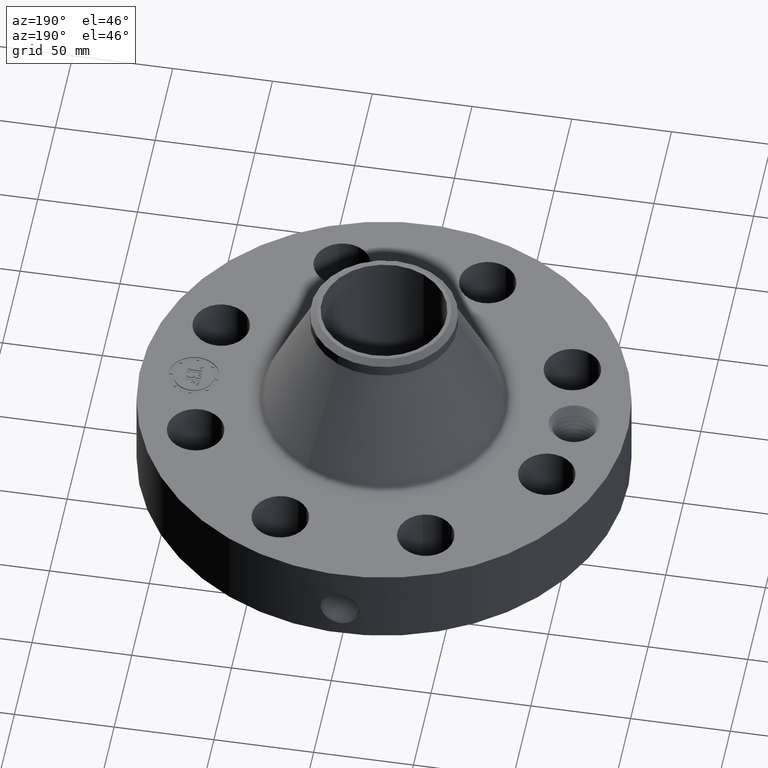
[diagram: clean part render]
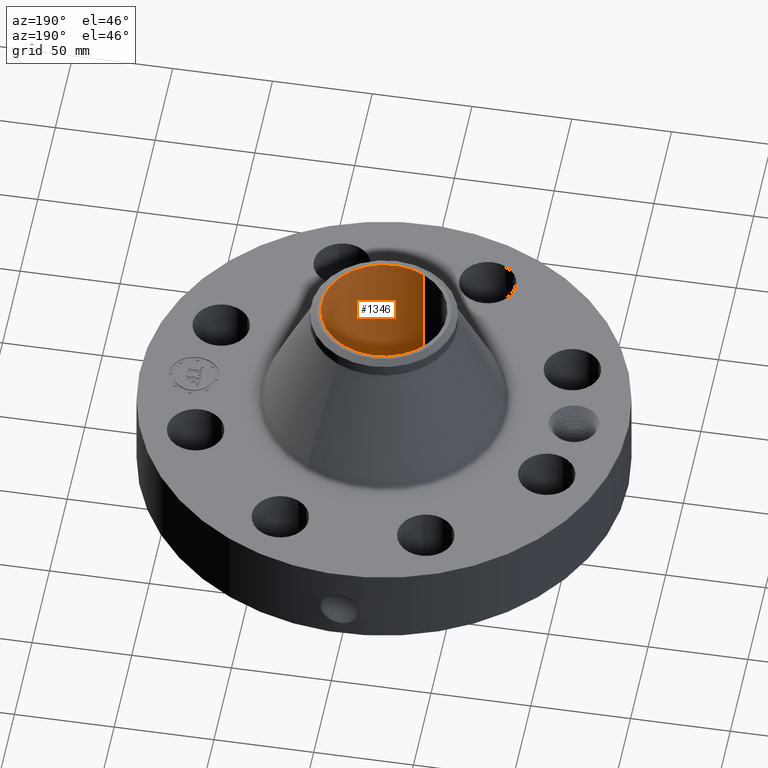
[diagram: same view with one face highlighted and labeled with its STEP entity id]
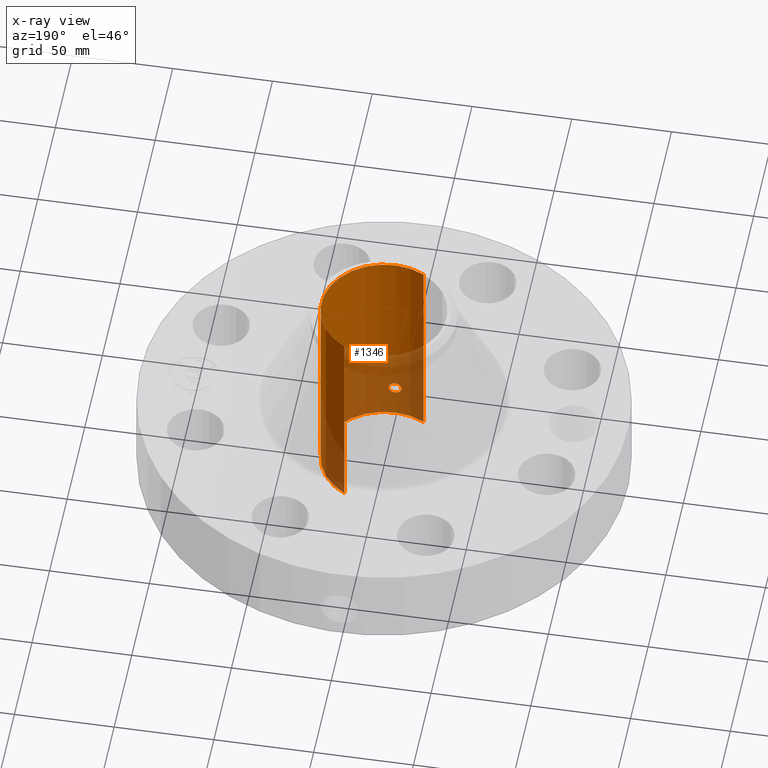
[diagram: x-ray of the same camera — body ghosted, the highlighted face saturated]
A machine part, auxiliary view. The second image highlights one B-rep face of the part: STEP entity #1346.
The next image is the same camera in x-ray: the body ghosted, the highlighted face saturated — about 38% of this face is hidden behind the body in this view.
In plain terms, the highlighted cylindrical surface (partial cylindrical patch) has radius 31.3563 mm, axis along (0, 0, -1).
Its self-contained STEP definition (entity closure, byte-faithful):
#259=AXIS2_PLACEMENT_3D('Circle Axis2P3D',#257,#258,$) ;
#1277=AXIS2_PLACEMENT_3D('Cylinder Axis2P3D',#1274,#1275,#1276) ;
#1281=AXIS2_PLACEMENT_3D('Circle Axis2P3D',#1279,#1280,$) ;
#257=CARTESIAN_POINT('Axis2P3D Location',(0.,0.,0.250000000001)) ;
#261=CARTESIAN_POINT('Vertex',(0.591850827409,1.08337567266,0.250000000001)) ;
#263=CARTESIAN_POINT('Vertex',(-0.591850827409,-1.08337567266,0.250000000001)) ;
#1274=CARTESIAN_POINT('Axis2P3D Location',(0.,0.,2.31000000001)) ;
#1279=CARTESIAN_POINT('Axis2P3D Location',(0.,0.,4.37000000002)) ;
#1283=CARTESIAN_POINT('Vertex',(0.591850827409,1.08337567266,4.37000000002)) ;
#1285=CARTESIAN_POINT('Vertex',(-0.591850827409,-1.08337567266,4.37000000002)) ;
#1288=CARTESIAN_POINT('Line Origine',(0.591850827409,1.08337567266,2.31000000001)) ;
#1293=CARTESIAN_POINT('Line Origine',(-0.591850827409,-1.08337567266,2.31000000001)) ;
#1305=CARTESIAN_POINT('Control Point',(0.109697820237,-1.22961645981,0.880071807678)) ;
#1306=CARTESIAN_POINT('Control Point',(0.103060754703,-1.2302085726,0.86792274071)) ;
#1307=CARTESIAN_POINT('Control Point',(0.0947439558039,-1.23090540221,0.856696444234)) ;
#1308=CARTESIAN_POINT('Control Point',(0.0849163370736,-1.23164628474,0.846698846517)) ;
#1309=CARTESIAN_POINT('Control Point',(0.0516790100626,-1.23375368765,0.821181117231)) ;
#1310=CARTESIAN_POINT('Control Point',(0.00988471501792,-1.23496616819,0.810628917418)) ;
#1311=CARTESIAN_POINT('Control Point',(-0.0193498984317,-1.23483636274,0.811705716321)) ;
#1312=CARTESIAN_POINT('Control Point',(-0.0602724640988,-1.23333252326,0.825297419781)) ;
#1313=CARTESIAN_POINT('Control Point',(-0.0915614927535,-1.23116135472,0.853204688419)) ;
#1314=CARTESIAN_POINT('Control Point',(-0.100642715653,-1.23042853514,0.86392031843)) ;
#1315=CARTESIAN_POINT('Control Point',(-0.120590039965,-1.22867082139,0.89549062852)) ;
#1316=CARTESIAN_POINT('Control Point',(-0.128081277399,-1.22782736432,0.932745795778)) ;
#1317=CARTESIAN_POINT('Control Point',(-0.127185080444,-1.22793040361,0.956762148458)) ;
#1318=CARTESIAN_POINT('Control Point',(-0.120785294946,-1.22862731251,0.97963270601)) ;
#1319=CARTESIAN_POINT('Control Point',(-0.109697820237,-1.22961645981,0.99992819233)) ;
#1320=CARTESIAN_POINT('Vertex',(0.109697820237,-1.22961645981,0.880071807678)) ;
#1322=CARTESIAN_POINT('Vertex',(-0.109697820237,-1.22961645981,0.99992819233)) ;
#1326=CARTESIAN_POINT('Control Point',(-0.109697820237,-1.22961645981,0.99992819233)) ;
#1327=CARTESIAN_POINT('Control Point',(-0.103060754705,-1.2302085726,1.01207725929)) ;
#1328=CARTESIAN_POINT('Control Point',(-0.09474395581,-1.23090540221,1.02330355577)) ;
#1329=CARTESIAN_POINT('Control Point',(-0.084916337065,-1.23164628474,1.0333011535)) ;
#1330=CARTESIAN_POINT('Control Point',(-0.0516790100574,-1.23375368765,1.05881888278)) ;
#1331=CARTESIAN_POINT('Control Point',(-0.00988471501886,-1.23496616819,1.06937108259)) ;
#1332=CARTESIAN_POINT('Control Point',(0.0193498984338,-1.23483636274,1.06829428369)) ;
#1333=CARTESIAN_POINT('Control Point',(0.0602724641015,-1.23333252326,1.05470258023)) ;
#1334=CARTESIAN_POINT('Control Point',(0.0915614927564,-1.23116135472,1.02679531159)) ;
#1335=CARTESIAN_POINT('Control Point',(0.100642715652,-1.23042853514,1.01607968158)) ;
#1336=CARTESIAN_POINT('Control Point',(0.120590039965,-1.22867082139,0.984509371489)) ;
#1337=CARTESIAN_POINT('Control Point',(0.128081277399,-1.22782736432,0.94725420423)) ;
#1338=CARTESIAN_POINT('Control Point',(0.127185080444,-1.22793040361,0.923237851548)) ;
#1339=CARTESIAN_POINT('Control Point',(0.120785294946,-1.22862731251,0.900367293998)) ;
#1340=CARTESIAN_POINT('Control Point',(0.109697820237,-1.22961645981,0.880071807678)) ;
#258=DIRECTION('Axis2P3D Direction',(0.,0.,-0.0393700787402)) ;
#1275=DIRECTION('Axis2P3D Direction',(0.,0.,-0.0393700787402)) ;
#1276=DIRECTION('Axis2P3D XDirection',(-0.0188750212049,-0.0345504945626,0.)) ;
#1280=DIRECTION('Axis2P3D Direction',(0.,0.,-0.0393700787402)) ;
#1289=DIRECTION('Vector Direction',(0.,0.,-0.0393700787402)) ;
#1294=DIRECTION('Vector Direction',(0.,0.,-0.0393700787402)) ;
#1290=VECTOR('Line Direction',#1289,0.0393700787402) ;
#1295=VECTOR('Line Direction',#1294,0.0393700787402) ;
#1299=ORIENTED_EDGE('',*,*,#1287,.F.) ;
#1300=ORIENTED_EDGE('',*,*,#1292,.T.) ;
#1301=ORIENTED_EDGE('',*,*,#265,.T.) ;
#1302=ORIENTED_EDGE('',*,*,#1297,.F.) ;
#1343=ORIENTED_EDGE('',*,*,#1324,.F.) ;
#1344=ORIENTED_EDGE('',*,*,#1341,.F.) ;
#1345=FACE_BOUND('',#1342,.T.) ;
#1346=ADVANCED_FACE('PartBody',(#1303,#1345),#1278,.F.) ;
#1304=B_SPLINE_CURVE_WITH_KNOTS('',5,(#1305,#1306,#1307,#1308,#1309,#1310,#1311,#1312,#1313,#1314,#1315,#1316,#1317,#1318,#1319),.UNSPECIFIED.,.F.,.U.,(6,3,3,3,6),(0.,2.48868847845,7.4642827696,9.95756087018,14.115011241),.UNSPECIFIED.) ;
#1325=B_SPLINE_CURVE_WITH_KNOTS('',5,(#1326,#1327,#1328,#1329,#1330,#1331,#1332,#1333,#1334,#1335,#1336,#1337,#1338,#1339,#1340),.UNSPECIFIED.,.F.,.U.,(6,3,3,3,6),(0.,2.48868847754,7.46428276855,9.95756086942,14.1150112401),.UNSPECIFIED.) ;
#260=CIRCLE('generated circle',#259,1.2345) ;
#1282=CIRCLE('generated circle',#1281,1.2345) ;
#1278=CYLINDRICAL_SURFACE('generated cylinder',#1277,1.2345) ;
#265=EDGE_CURVE('',#262,#264,#260,.T.) ;
#1287=EDGE_CURVE('',#1284,#1286,#1282,.T.) ;
#1292=EDGE_CURVE('',#1284,#262,#1291,.T.) ;
#1297=EDGE_CURVE('',#1286,#264,#1296,.T.) ;
#1324=EDGE_CURVE('',#1321,#1323,#1304,.T.) ;
#1341=EDGE_CURVE('',#1323,#1321,#1325,.T.) ;
#1298=EDGE_LOOP('',(#1299,#1300,#1301,#1302)) ;
#1342=EDGE_LOOP('',(#1343,#1344)) ;
#1303=FACE_OUTER_BOUND('',#1298,.T.) ;
#1291=LINE('Line',#1288,#1290) ;
#1296=LINE('Line',#1293,#1295) ;
#262=VERTEX_POINT('',#261) ;
#264=VERTEX_POINT('',#263) ;
#1284=VERTEX_POINT('',#1283) ;
#1286=VERTEX_POINT('',#1285) ;
#1321=VERTEX_POINT('',#1320) ;
#1323=VERTEX_POINT('',#1322) ;